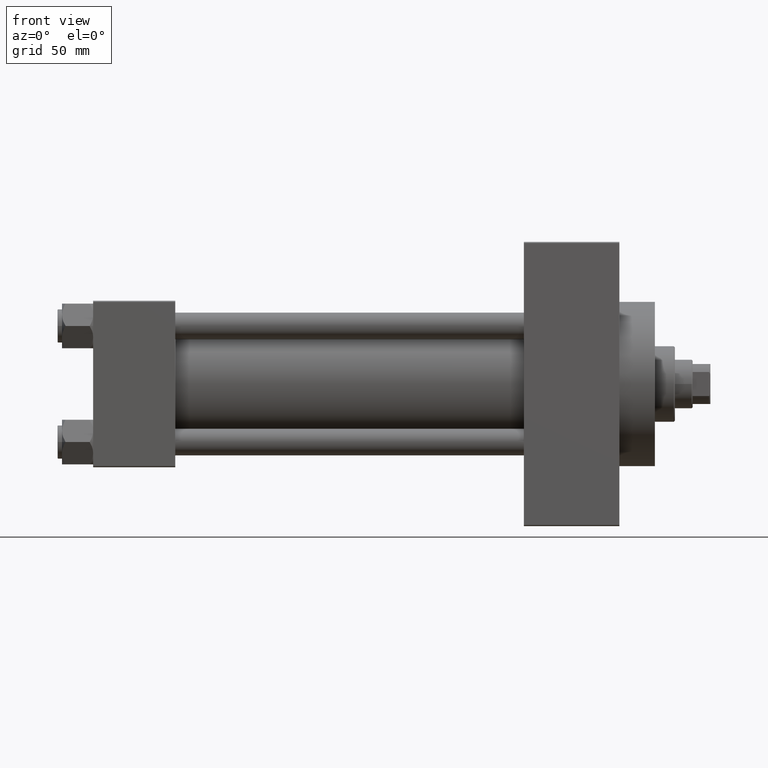
[diagram: clean part render]
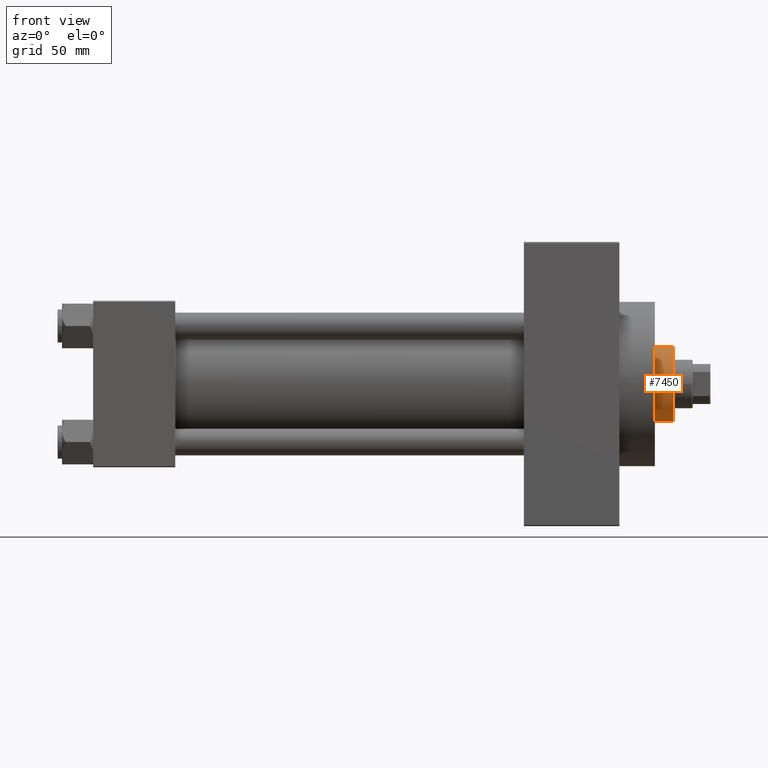
[diagram: same view with one face highlighted and labeled with its STEP entity id]
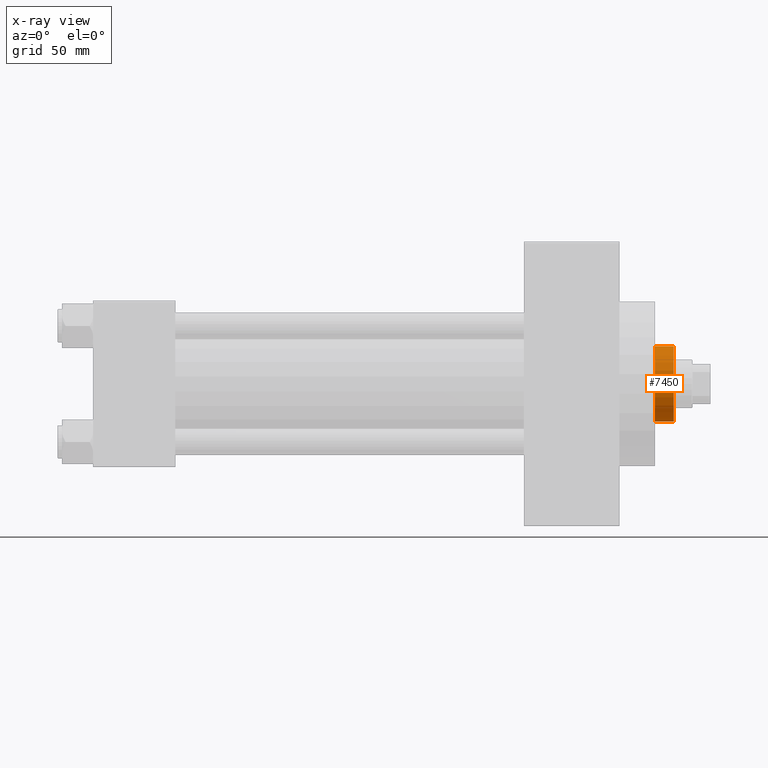
[diagram: x-ray of the same camera — body ghosted, the highlighted face saturated]
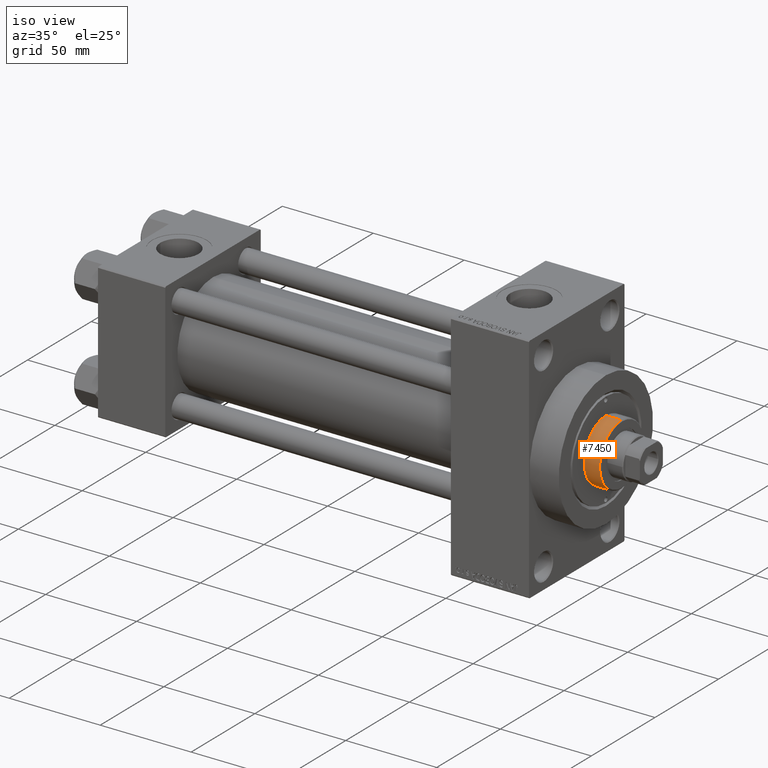
[diagram: same view with one face highlighted and labeled with its STEP entity id]
A machine part, front view. The second image highlights one B-rep face of the part: STEP entity #7450.
The next image is the same camera in x-ray: the body ghosted, the highlighted face saturated — about 0% of this face is hidden behind the body in this view.
A second angle (iso view) of the same face is appended — the face is thin or edge-on in the first view.
In plain terms, the highlighted cylindrical surface (partial cylindrical patch) has radius 17 mm, axis along (-1, 0, 0).
Its self-contained STEP definition (entity closure, byte-faithful):
#736 = CARTESIAN_POINT ( 'NONE',  ( 0.000000000000000000, 0.000000000000000000, 43.25999999999999801 ) ) ;
#4434 = AXIS2_PLACEMENT_3D ( 'NONE', #19287, #14736, #26232 ) ;
#7450 = ADVANCED_FACE ( 'NONE', ( #11126 ), #29356, .T. ) ;
#7821 = EDGE_CURVE ( 'NONE', #27479, #31206, #17321, .T. ) ;
#10316 = VERTEX_POINT ( 'NONE', #32132 ) ;
#10596 = DIRECTION ( 'NONE',  ( -0.000000000000000000, -0.000000000000000000, -1.000000000000000000 ) ) ;
#10605 = VECTOR ( 'NONE', #10596, 1000.000000000000000 ) ;
#11126 = FACE_OUTER_BOUND ( 'NONE', #45279, .T. ) ;
#13107 = VERTEX_POINT ( 'NONE', #26830 ) ;
#14736 = DIRECTION ( 'NONE',  ( -0.000000000000000000, -0.000000000000000000, -1.000000000000000000 ) ) ;
#14808 = ORIENTED_EDGE ( 'NONE', *, *, #7821, .T. ) ;
#15121 = VECTOR ( 'NONE', #39929, 1000.000000000000000 ) ;
#15535 = DIRECTION ( 'NONE',  ( 1.000000000000000000, 0.000000000000000000, 0.000000000000000000 ) ) ;
#17321 = LINE ( 'NONE', #25232, #10605 ) ;
#18279 = AXIS2_PLACEMENT_3D ( 'NONE', #30383, #37579, #15535 ) ;
#19287 = CARTESIAN_POINT ( 'NONE',  ( 0.000000000000000000, 0.000000000000000000, 52.25999999999999801 ) ) ;
#22059 = EDGE_CURVE ( 'NONE', #10316, #13107, #32971, .T. ) ;
#25018 = DIRECTION ( 'NONE',  ( 0.000000000000000000, 0.000000000000000000, 1.000000000000000000 ) ) ;
#25232 = CARTESIAN_POINT ( 'NONE',  ( 17.00000000000000000, 2.081899558550500280E-15, 52.25999999999999801 ) ) ;
#26232 = DIRECTION ( 'NONE',  ( -1.000000000000000000, 0.000000000000000000, 0.000000000000000000 ) ) ;
#26830 = CARTESIAN_POINT ( 'NONE',  ( -17.00000000000000000, 0.000000000000000000, 43.25999999999999801 ) ) ;
#27479 = VERTEX_POINT ( 'NONE', #41768 ) ;
#27551 = ORIENTED_EDGE ( 'NONE', *, *, #22059, .F. ) ;
#27912 = EDGE_CURVE ( 'NONE', #10316, #27479, #39674, .T. ) ;
#28422 = CARTESIAN_POINT ( 'NONE',  ( -17.00000000000000000, 0.000000000000000000, 52.25999999999999801 ) ) ;
#29356 = CYLINDRICAL_SURFACE ( 'NONE', #4434, 17.00000000000000000 ) ;
#30383 = CARTESIAN_POINT ( 'NONE',  ( 0.000000000000000000, 0.000000000000000000, 51.76000000000000512 ) ) ;
#31206 = VERTEX_POINT ( 'NONE', #35341 ) ;
#32132 = CARTESIAN_POINT ( 'NONE',  ( -17.00000000000000000, 0.000000000000000000, 51.76000000000000512 ) ) ;
#32971 = LINE ( 'NONE', #28422, #15121 ) ;
#33240 = AXIS2_PLACEMENT_3D ( 'NONE', #736, #25018, #43721 ) ;
#35341 = CARTESIAN_POINT ( 'NONE',  ( 17.00000000000000000, 2.081899558550500280E-15, 43.25999999999999801 ) ) ;
#37579 = DIRECTION ( 'NONE',  ( 0.000000000000000000, 0.000000000000000000, -1.000000000000000000 ) ) ;
#39674 = CIRCLE ( 'NONE', #18279, 17.00000000000000000 ) ;
#39929 = DIRECTION ( 'NONE',  ( -0.000000000000000000, -0.000000000000000000, -1.000000000000000000 ) ) ;
#40118 = CIRCLE ( 'NONE', #33240, 17.00000000000000000 ) ;
#41768 = CARTESIAN_POINT ( 'NONE',  ( 17.00000000000000000, 2.081899558550500280E-15, 51.76000000000000512 ) ) ;
#42899 = ORIENTED_EDGE ( 'NONE', *, *, #44692, .T. ) ;
#43069 = ORIENTED_EDGE ( 'NONE', *, *, #27912, .T. ) ;
#43721 = DIRECTION ( 'NONE',  ( 1.000000000000000000, 0.000000000000000000, 0.000000000000000000 ) ) ;
#44692 = EDGE_CURVE ( 'NONE', #31206, #13107, #40118, .T. ) ;
#45279 = EDGE_LOOP ( 'NONE', ( #43069, #14808, #42899, #27551 ) ) ;